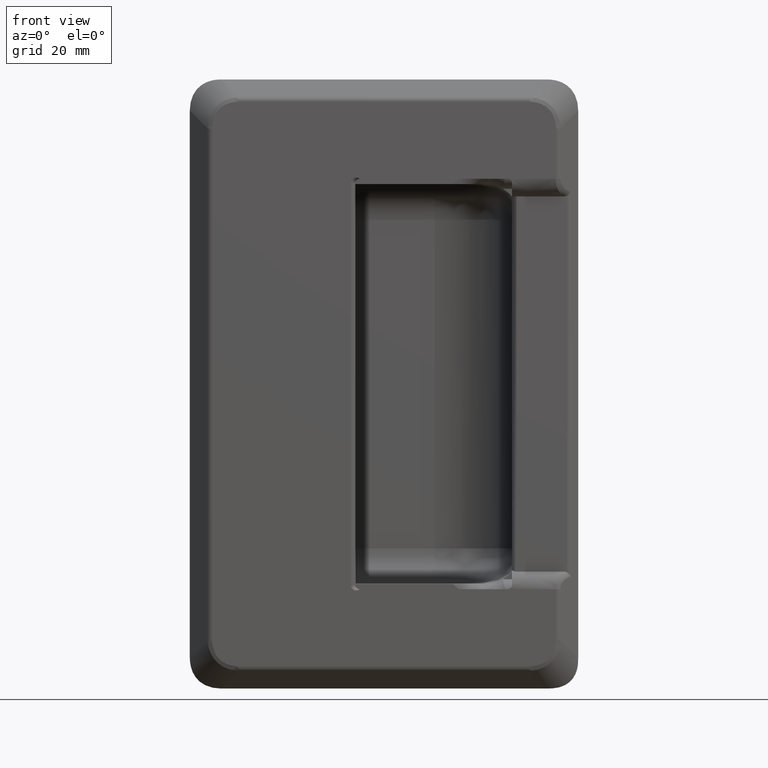
[diagram: clean part render]
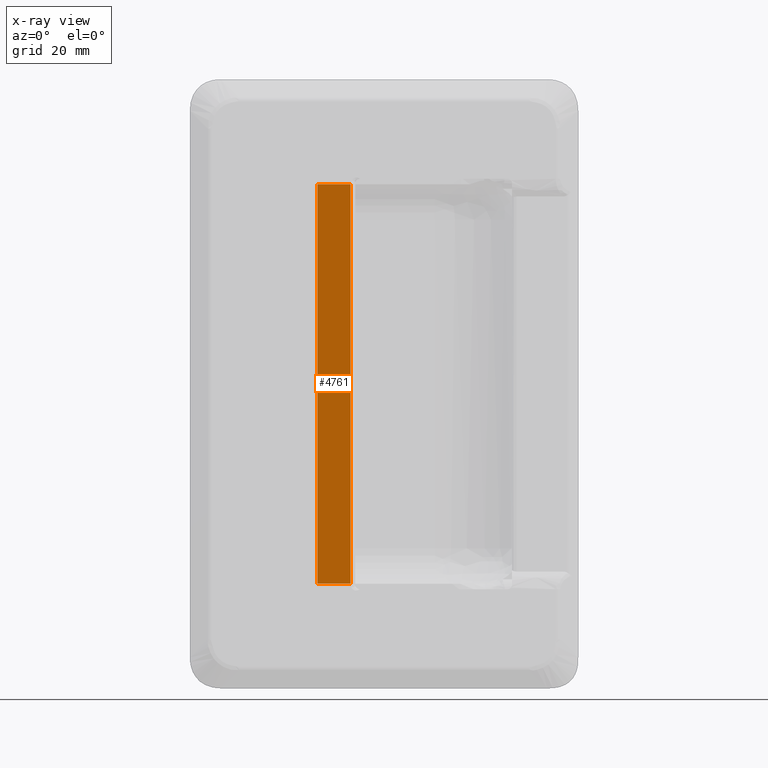
[diagram: x-ray — body ghosted, one internal face saturated and labeled with its STEP entity id]
A machine part, front view, then the same camera in x-ray: the body is ghosted and one INTERNAL B-rep face — a face not visible from any outside direction — is saturated and labeled: STEP entity #4761.
In plain terms, the highlighted face is a freeform B-spline surface patch.
Its self-contained STEP definition (entity closure, byte-faithful):
#4385=CARTESIAN_POINT('',(-7.550000000415890,2.560000000000000,45.249999999965503));
#4386=VERTEX_POINT('',#4385);
#4404=CARTESIAN_POINT('',(-7.550000000415890,2.560000000000000,-45.250000000034397));
#4405=VERTEX_POINT('',#4404);
#4416=CARTESIAN_POINT('',(-7.550000000415890,2.560000000000000,45.249999999965503));
#4417=CARTESIAN_POINT('',(-7.550000000415890,2.560000000000000,-45.250000000034397));
#4418=QUASI_UNIFORM_CURVE('',1,(#4416,#4417),.UNSPECIFIED.,.F.,.U.);
#4419=EDGE_CURVE('',#4386,#4405,#4418,.T.);
#4605=CARTESIAN_POINT('',(-15.098725682517751,2.560000000000000,-45.250000000034397));
#4606=VERTEX_POINT('',#4605);
#4607=CARTESIAN_POINT('',(-7.550000000415890,2.560000000000000,-45.250000000034397));
#4608=CARTESIAN_POINT('',(-15.098725682517751,2.560000000000000,-45.250000000034397));
#4609=QUASI_UNIFORM_CURVE('',1,(#4607,#4608),.UNSPECIFIED.,.F.,.U.);
#4610=EDGE_CURVE('',#4405,#4606,#4609,.T.);
#4662=CARTESIAN_POINT('',(-15.098725682517751,2.560000000000000,45.249999999965503));
#4663=VERTEX_POINT('',#4662);
#4664=CARTESIAN_POINT('',(-7.550000000415890,2.560000000000000,45.249999999965503));
#4665=CARTESIAN_POINT('',(-15.098725682517751,2.560000000000000,45.249999999965503));
#4666=QUASI_UNIFORM_CURVE('',1,(#4664,#4665),.UNSPECIFIED.,.F.,.U.);
#4667=EDGE_CURVE('',#4386,#4663,#4666,.T.);
#4742=CARTESIAN_POINT('',(-15.098725682517751,2.560000000000000,45.249999999965503));
#4743=CARTESIAN_POINT('',(-15.098725682517751,2.560000000000000,-45.250000000034397));
#4744=QUASI_UNIFORM_CURVE('',1,(#4742,#4743),.UNSPECIFIED.,.F.,.U.);
#4745=EDGE_CURVE('',#4663,#4606,#4744,.T.);
#4750=CARTESIAN_POINT('',(-15.475784134428320,2.560000000000000,-49.770474824627840));
#4751=CARTESIAN_POINT('',(-7.172941548505326,2.560000000000000,-49.770474824627840));
#4752=CARTESIAN_POINT('',(-15.475784134428320,2.560000000000000,49.770477251958098));
#4753=CARTESIAN_POINT('',(-7.172941548505326,2.560000000000000,49.770477251958098));
#4754=B_SPLINE_SURFACE_WITH_KNOTS('',1,1,((#4750,#4752),(#4751,#4753)),.UNSPECIFIED.,.F.,.F.,.U.,(2,2),(2,2),(0.0,8.302842585922988),(0.0,99.540952076585938),.UNSPECIFIED.);
#4755=ORIENTED_EDGE('',*,*,#4667,.F.);
#4756=ORIENTED_EDGE('',*,*,#4419,.T.);
#4757=ORIENTED_EDGE('',*,*,#4610,.T.);
#4758=ORIENTED_EDGE('',*,*,#4745,.F.);
#4759=EDGE_LOOP('',(#4755,#4756,#4757,#4758));
#4760=FACE_OUTER_BOUND('',#4759,.T.);
#4761=ADVANCED_FACE('',(#4760),#4754,.F.);